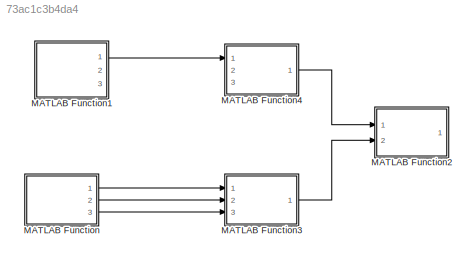
MODEL slx_73ac1c3b4da4
KIND model
CONFIG AbsTol = auto
CONFIG EnableMultiTasking = off
CONFIG FixedStep = auto
CONFIG MaxStep = auto
CONFIG MinStep = auto
CONFIG RelTol = 1e-3
CONFIG SampleTimeConstraint = Unconstrained
CONFIG Solver = VariableStepAuto
CONFIG SolverName = VariableStepAuto
CONFIG StartTime = 0.0
CONFIG StopTime = 10.0
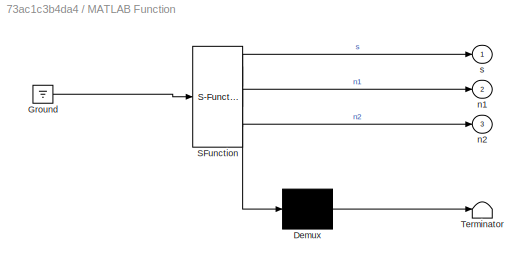
BLOCK [SubSystem] MATLAB Function
  ErrorFcn = Stateflow.Translate.translate
  PermitHierarchicalResolution = ExplicitOnly
  Ports = [0, 3]
  RequestExecContextInheritance = off
  SFBlockType = MATLAB Function
  TreatAsAtomicUnit = on
BLOCK [Demux] MATLAB Function/ Demux 
  Outputs = 1
  Ports = [1, 1]
BLOCK [Ground] MATLAB Function/ Ground 
BLOCK [S-Function] MATLAB Function/ SFunction 
  EnableBusSupport = off
  FunctionName = sf_sfun
  PortCounts = [1 4]
  Ports = [1, 4]
  SFcnIsStateOwnerBlock = off
  SFunctionDeploymentMode = off
  Tag = Stateflow S-Function 2
BLOCK [Terminator] MATLAB Function/ Terminator 
BLOCK [Outport] MATLAB Function/n1
  IconDisplay = Port number
  Port = 2
BLOCK [Outport] MATLAB Function/n2
  IconDisplay = Port number
  Port = 3
BLOCK [Outport] MATLAB Function/s
  IconDisplay = Port number
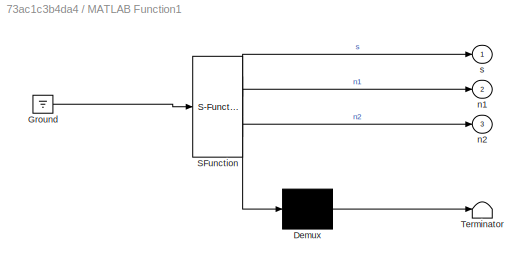
BLOCK [SubSystem] MATLAB Function1
  ErrorFcn = Stateflow.Translate.translate
  PermitHierarchicalResolution = ExplicitOnly
  Ports = [0, 3]
  RequestExecContextInheritance = off
  SFBlockType = MATLAB Function
  TreatAsAtomicUnit = on
BLOCK [Demux] MATLAB Function1/ Demux 
  Outputs = 1
  Ports = [1, 1]
BLOCK [Ground] MATLAB Function1/ Ground 
BLOCK [S-Function] MATLAB Function1/ SFunction 
  EnableBusSupport = off
  FunctionName = sf_sfun
  PortCounts = [1 4]
  Ports = [1, 4]
  SFcnIsStateOwnerBlock = off
  SFunctionDeploymentMode = off
  Tag = Stateflow S-Function 1
BLOCK [Terminator] MATLAB Function1/ Terminator 
BLOCK [Outport] MATLAB Function1/n1
  IconDisplay = Port number
  Port = 2
BLOCK [Outport] MATLAB Function1/n2
  IconDisplay = Port number
  Port = 3
BLOCK [Outport] MATLAB Function1/s
  IconDisplay = Port number
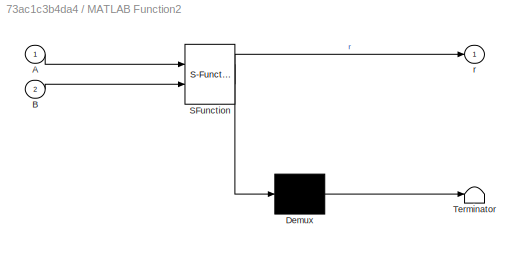
BLOCK [SubSystem] MATLAB Function2
  ErrorFcn = Stateflow.Translate.translate
  PermitHierarchicalResolution = ExplicitOnly
  Ports = [2, 1]
  RequestExecContextInheritance = off
  SFBlockType = MATLAB Function
  TreatAsAtomicUnit = on
BLOCK [Demux] MATLAB Function2/ Demux 
  Outputs = 1
  Ports = [1, 1]
BLOCK [S-Function] MATLAB Function2/ SFunction 
  EnableBusSupport = off
  FunctionName = sf_sfun
  PortCounts = [2 2]
  Ports = [2, 2]
  SFcnIsStateOwnerBlock = off
  SFunctionDeploymentMode = off
  Tag = Stateflow S-Function 3
BLOCK [Terminator] MATLAB Function2/ Terminator 
BLOCK [Inport] MATLAB Function2/A
  IconDisplay = Port number
BLOCK [Inport] MATLAB Function2/B
  IconDisplay = Port number
  Port = 2
BLOCK [Outport] MATLAB Function2/r
  IconDisplay = Port number
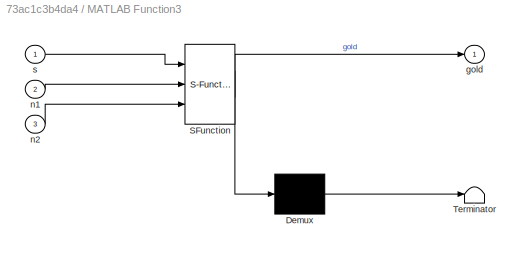
BLOCK [SubSystem] MATLAB Function3
  ErrorFcn = Stateflow.Translate.translate
  PermitHierarchicalResolution = ExplicitOnly
  Ports = [3, 1]
  RequestExecContextInheritance = off
  SFBlockType = MATLAB Function
  TreatAsAtomicUnit = on
BLOCK [Demux] MATLAB Function3/ Demux 
  Outputs = 1
  Ports = [1, 1]
BLOCK [S-Function] MATLAB Function3/ SFunction 
  EnableBusSupport = off
  FunctionName = sf_sfun
  PortCounts = [3 2]
  Ports = [3, 2]
  SFcnIsStateOwnerBlock = off
  SFunctionDeploymentMode = off
  Tag = Stateflow S-Function 4
BLOCK [Terminator] MATLAB Function3/ Terminator 
BLOCK [Outport] MATLAB Function3/gold
  IconDisplay = Port number
BLOCK [Inport] MATLAB Function3/n1
  IconDisplay = Port number
  Port = 2
BLOCK [Inport] MATLAB Function3/n2
  IconDisplay = Port number
  Port = 3
BLOCK [Inport] MATLAB Function3/s
  IconDisplay = Port number
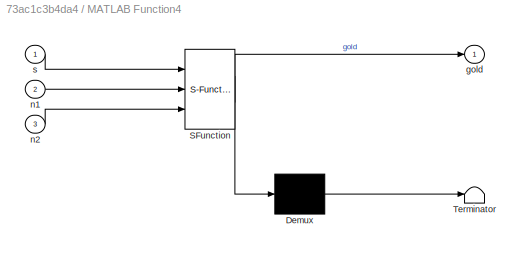
BLOCK [SubSystem] MATLAB Function4
  ErrorFcn = Stateflow.Translate.translate
  PermitHierarchicalResolution = ExplicitOnly
  Ports = [3, 1]
  RequestExecContextInheritance = off
  SFBlockType = MATLAB Function
  TreatAsAtomicUnit = on
BLOCK [Demux] MATLAB Function4/ Demux 
  Outputs = 1
  Ports = [1, 1]
BLOCK [S-Function] MATLAB Function4/ SFunction 
  EnableBusSupport = off
  FunctionName = sf_sfun
  PortCounts = [3 2]
  Ports = [3, 2]
  SFcnIsStateOwnerBlock = off
  SFunctionDeploymentMode = off
  Tag = Stateflow S-Function 5
BLOCK [Terminator] MATLAB Function4/ Terminator 
BLOCK [Outport] MATLAB Function4/gold
  IconDisplay = Port number
BLOCK [Inport] MATLAB Function4/n1
  IconDisplay = Port number
  Port = 2
BLOCK [Inport] MATLAB Function4/n2
  IconDisplay = Port number
  Port = 3
BLOCK [Inport] MATLAB Function4/s
  IconDisplay = Port number
LINE MATLAB Function1:1 -> MATLAB Function4:1
LINE MATLAB Function3:1 -> MATLAB Function2:2
LINE MATLAB Function4:1 -> MATLAB Function2:1
LINE MATLAB Function:1 -> MATLAB Function3:1
LINE MATLAB Function:2 -> MATLAB Function3:2
LINE MATLAB Function:3 -> MATLAB Function3:3
CHART MATLAB Function1 states=1 transitions=1
  STATE_LABEL 'eML_blk_kernel()'
  STATE_LABEL 'SCRIPT:\nfunction [s,n1,n2]= fcn\n s=[1 0 1 0 1];\n n1=1;\n n2=3;\n\n'
CHART MATLAB Function states=1 transitions=1
  STATE_LABEL 'eML_blk_kernel()'
  STATE_LABEL 'SCRIPT:\nfunction [s,n1,n2]= fcn\n s=[1 0 1 0 1];\n n1=1;\n n2=3;\n\n'
CHART MATLAB Function2 states=1 transitions=1
  STATE_LABEL 'eML_blk_kernel()'
  STATE_LABEL 'SCRIPT:\nfunction r  = myXCorr(A , B)\nN = size(A,2);\nM = size(B,2);\nr = zeros(1, N + M - 1 );\nlen = size(r,2);\nmax_a =max(N,M);\nmin_a =min(N,M);\nfor i = 1 : len  \n   a = (i - N);\n   if(a < 0)\n       f = 1;\n       l = N + a;\n   else\n       f = 0;\n       l = N - a;\n   end\n    for j = 1:l\n           if(f == 0)\n            r(i) = r(i) + A(a + j) * B(j);\n           else\n            r(i) = r(i) + A(j) * ...<+39ch>'
CHART MATLAB Function3 states=1 transitions=1
  STATE_LABEL 'eML_blk_kernel()'
  STATE_LABEL 'SCRIPT:\nfunction gold = gold_sequence(s,n1,n2)\nG=93;  % Code length\nx=[];\np1=[];\np2=[];\nn=length(s);\n%generation of 1st sequence\nfor j=1:G        \n    p1=[p1 s(5)];\n    a=xor(s(n1),s(n2));\n    s(n-4)=s(n-3);\n    s(n-3)=s(n-2);\n    s(n-2)=s(n-1);\n    s(n-1)=s(n);\n    s(n)=a;\nend\nx=[p1];\n%Generation of 2nd sequnces\np2(1)=x(1);\nfor i=1:30\n    j=(3*i)+1;\n    p2(i+1)=x(j);\nend\n%Shifting of p1 in Matrix...<+231ch>'
CHART MATLAB Function4 states=1 transitions=1
  STATE_LABEL 'eML_blk_kernel()'
  STATE_LABEL 'SCRIPT:\nfunction gold = gold_sequence(s,n1,n2)\nG=93;  % Code length\nx=[];\np1=[];\np2=[];\nn=length(s);\n%generation of 1st sequence\nfor j=1:G        \n    p1=[p1 s(5)];\n    a=xor(s(n1),s(n2));\n    s(n-4)=s(n-3);\n    s(n-3)=s(n-2);\n    s(n-2)=s(n-1);\n    s(n-1)=s(n);\n    s(n)=a;\nend\nx=[p1];\n%Generation of 2nd sequnces\np2(1)=x(1);\nfor i=1:30\n    j=(3*i)+1;\n    p2(i+1)=x(j);\nend\n%Shifting of p1 in Matrix...<+231ch>'
